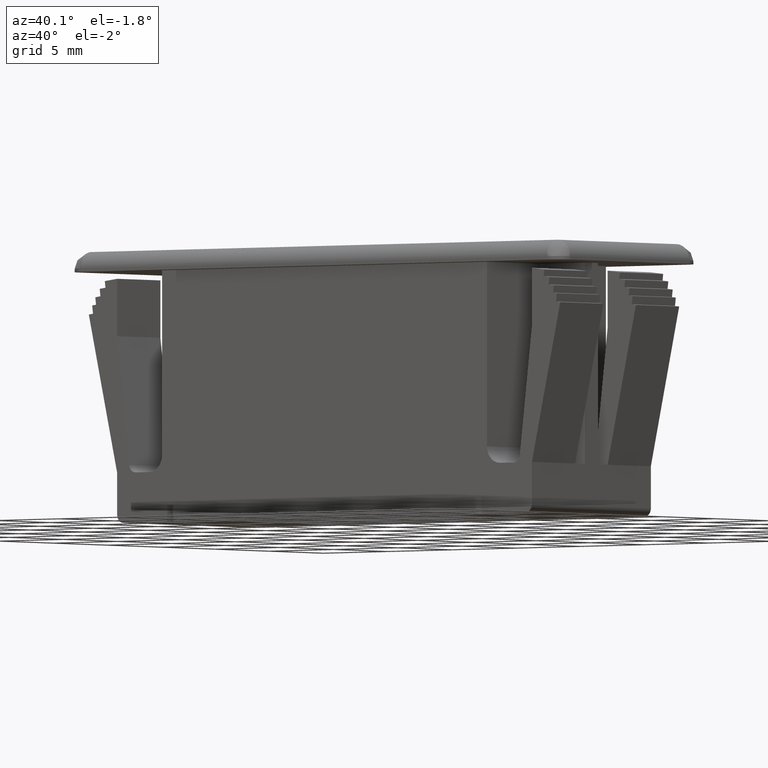
[diagram: clean part render]
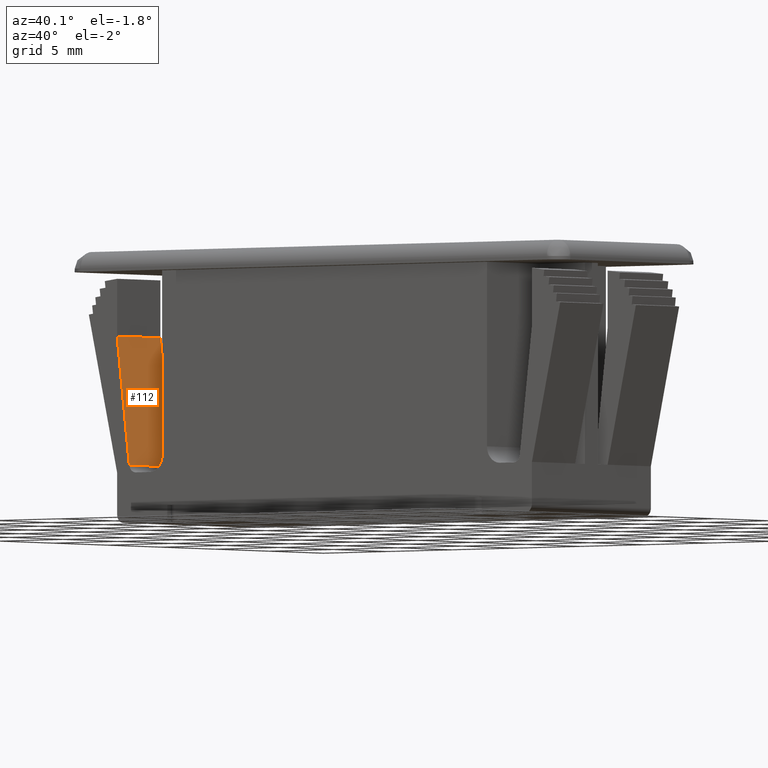
[diagram: same view with one face highlighted and labeled with its STEP entity id]
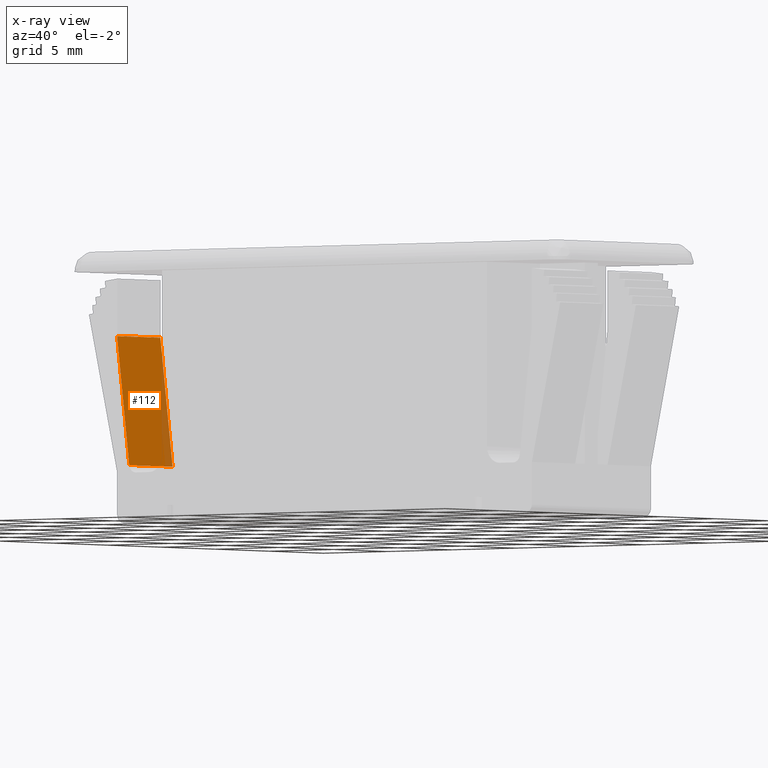
[diagram: x-ray of the same camera — body ghosted, the highlighted face saturated]
A machine part, auxiliary view. The second image highlights one B-rep face of the part: STEP entity #112.
The next image is the same camera in x-ray: the body ghosted, the highlighted face saturated — about 10% of this face is hidden behind the body in this view.
In plain terms, the highlighted face is a freeform B-spline surface patch.
Its self-contained STEP definition (entity closure, byte-faithful):
#77=CARTESIAN_POINT('',(-16.197257161544300,-5.699799992247227,-4.670811449862308));
#78=CARTESIAN_POINT('',(-15.156653456167509,-5.699799992247227,-13.145812180260171));
#79=CARTESIAN_POINT('',(-16.197257161544300,-1.300199900464359,-4.670811449862308));
#80=CARTESIAN_POINT('',(-15.156653456167509,-1.300199900464359,-13.145812180260171));
#81=B_SPLINE_SURFACE_WITH_KNOTS('',1,1,((#77,#79),(#78,#80)),.UNSPECIFIED.,.F.,.F.,.U.,(2,2),(2,2),(0.0,8.538647050434170),(0.0,4.399600091782868),.UNSPECIFIED.);
#82=CARTESIAN_POINT('',(-15.203910643087649,-5.500000000000000,-12.760934929107201));
#83=VERTEX_POINT('',#82);
#84=CARTESIAN_POINT('',(-15.203910643087550,-1.499999999999946,-12.760934929107201));
#85=VERTEX_POINT('',#84);
#86=CARTESIAN_POINT('',(-15.203910643087649,-5.500000000000000,-12.760934929107201));
#87=CARTESIAN_POINT('',(-15.203910643087550,-1.499999999999946,-12.760934929107201));
#88=QUASI_UNIFORM_CURVE('',1,(#86,#87),.UNSPECIFIED.,.F.,.U.);
#89=EDGE_CURVE('',#83,#85,#88,.T.);
#90=ORIENTED_EDGE('',*,*,#89,.T.);
#91=CARTESIAN_POINT('',(-16.149999999999999,-1.499999999999946,-5.055688494344420));
#92=VERTEX_POINT('',#91);
#93=CARTESIAN_POINT('',(-15.203910643087550,-1.499999999999946,-12.760934929107201));
#94=CARTESIAN_POINT('',(-16.149999999999999,-1.499999999999946,-5.055688494344420));
#95=QUASI_UNIFORM_CURVE('',1,(#93,#94),.UNSPECIFIED.,.F.,.U.);
#96=EDGE_CURVE('',#85,#92,#95,.T.);
#97=ORIENTED_EDGE('',*,*,#96,.T.);
#98=CARTESIAN_POINT('',(-16.149999999999999,-5.500000000000000,-5.055688494344420));
#99=VERTEX_POINT('',#98);
#100=CARTESIAN_POINT('',(-16.149999999999999,-5.500000000000000,-5.055688494344420));
#101=CARTESIAN_POINT('',(-16.149999999999999,-1.499999999999946,-5.055688494344420));
#102=QUASI_UNIFORM_CURVE('',1,(#100,#101),.UNSPECIFIED.,.F.,.U.);
#103=EDGE_CURVE('',#99,#92,#102,.T.);
#104=ORIENTED_EDGE('',*,*,#103,.F.);
#105=CARTESIAN_POINT('',(-16.149999999999999,-5.500000000000000,-5.055688494344420));
#106=CARTESIAN_POINT('',(-15.203910643087649,-5.500000000000000,-12.760934929107201));
#107=QUASI_UNIFORM_CURVE('',1,(#105,#106),.UNSPECIFIED.,.F.,.U.);
#108=EDGE_CURVE('',#99,#83,#107,.T.);
#109=ORIENTED_EDGE('',*,*,#108,.T.);
#110=EDGE_LOOP('',(#90,#97,#104,#109));
#111=FACE_OUTER_BOUND('',#110,.T.);
#112=ADVANCED_FACE('',(#111),#81,.T.);